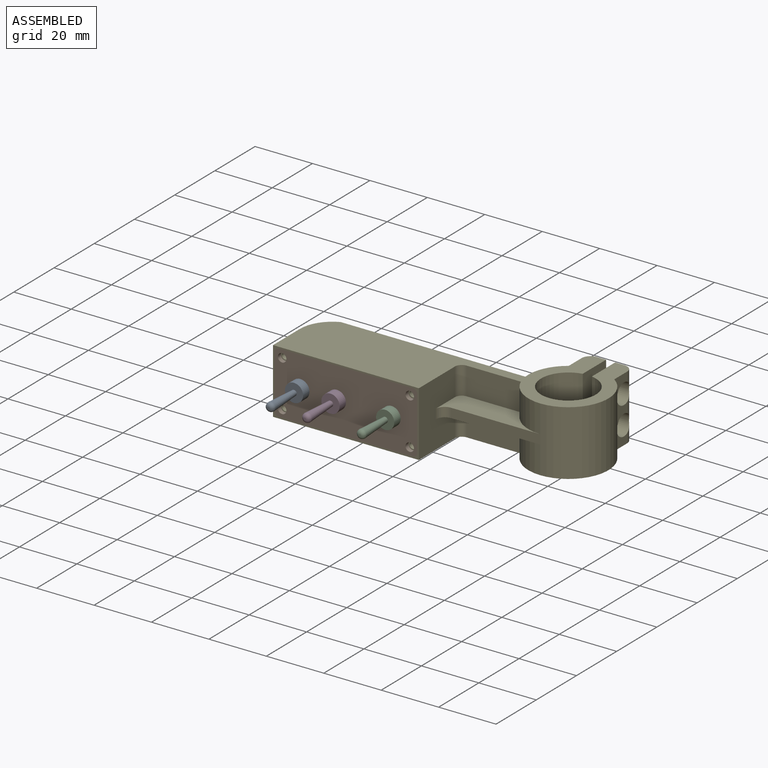
[diagram: assembled view]
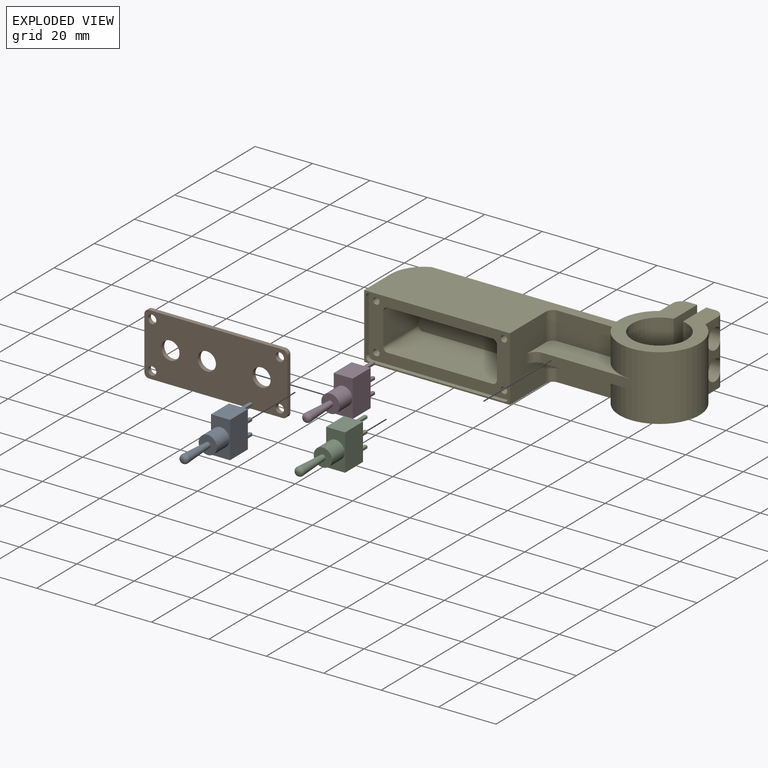
[diagram: exploded view]
GUIDED TOUR — MATED ASSEMBLY (Onshape document a5879a519bc53647b5c58836, AutoMate assembly a5879a519bc53647b5c58836_7702a39120ba5fd16faa81c5_e7838c47f35d2e23a4a96ffd_default)

This assembly has 5 components, labeled P0..P4 below (a component is one placed occurrence of a part; the same part can appear more than once), held together by 4 mates. A mate is a constraint between two components; its type names the relative motion it leaves free:
  FASTENED — locks the two components together rigidly (no relative motion).
Axis/direction vectors are unit vectors and 'through' points are millimeter coordinates, both in the assembly's world frame.

MATES
  1. FASTENED "Fastened 1": P0 <-> P1, direction (0.000, -1.000, 0.000) through (0.62, -12.88, -27.69) mm
  2. FASTENED "Fastened 3": P2 <-> P1, direction (0.000, -1.000, 0.000) through (32.37, -12.88, -27.69) mm
  3. FASTENED "Fastened 2": P3 <-> P1, direction (0.000, -1.000, 0.000) through (13.32, -12.88, -27.69) mm
  4. FASTENED "Fastened 4": P4 <-> P1, direction (0.000, -1.000, 0.000) through (-5.73, -8.18, -35.81) mm

ASSEMBLY ORDER
  1. P3 — the base component [order verified]
  2. P4 [order verified]
  3. P2 [order verified]
  4. P1 [order verified]
  5. P0 [order verified]
Order-tag legend:
  [order verified] — this step's position reverses a verified removal order: the component was checked to insert without passing through the ones already placed.

Of the 5 components, 4 carry the full construction recipe — the FeatureScript program that regenerates the part's solid from scratch; the rest are supplied as boundary geometry only.
Each toured component is shown spotlighted twice — in the assembled view, then in the exploded view, where a leader line traces a displaced component back to its assembled socket (saturated green if recipe-attached, orange if geometry-only; every other component desaturated gray) — followed by its recipe or geometry summary and the mates that hold it.
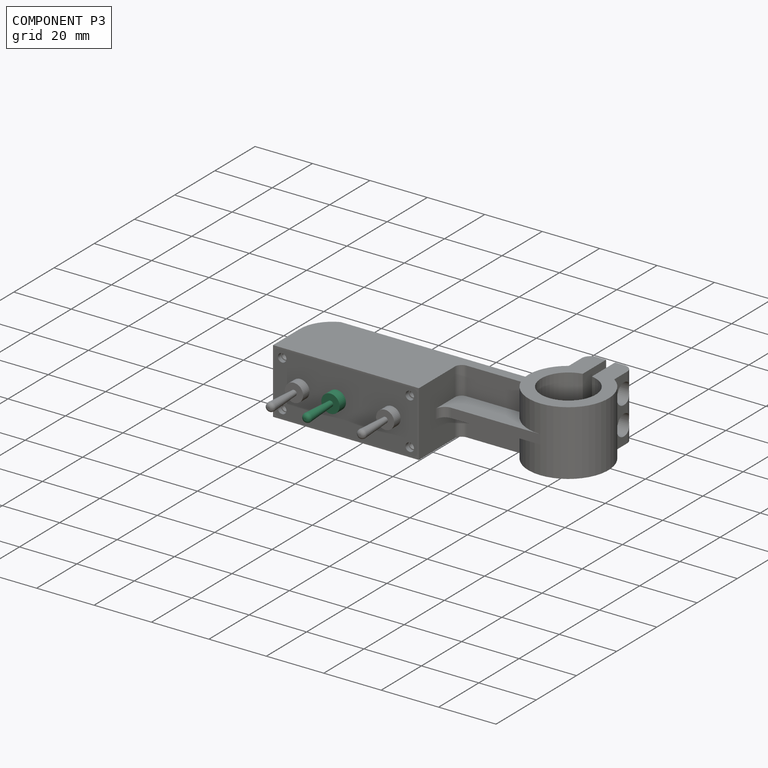
[diagram: component P3 — assembled]
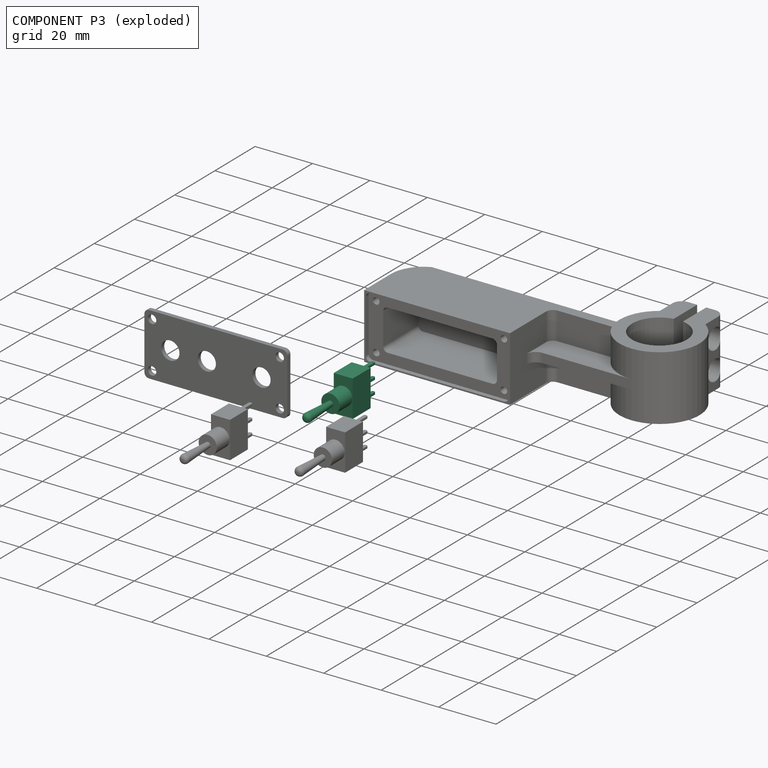
[diagram: component P3 — exploded]
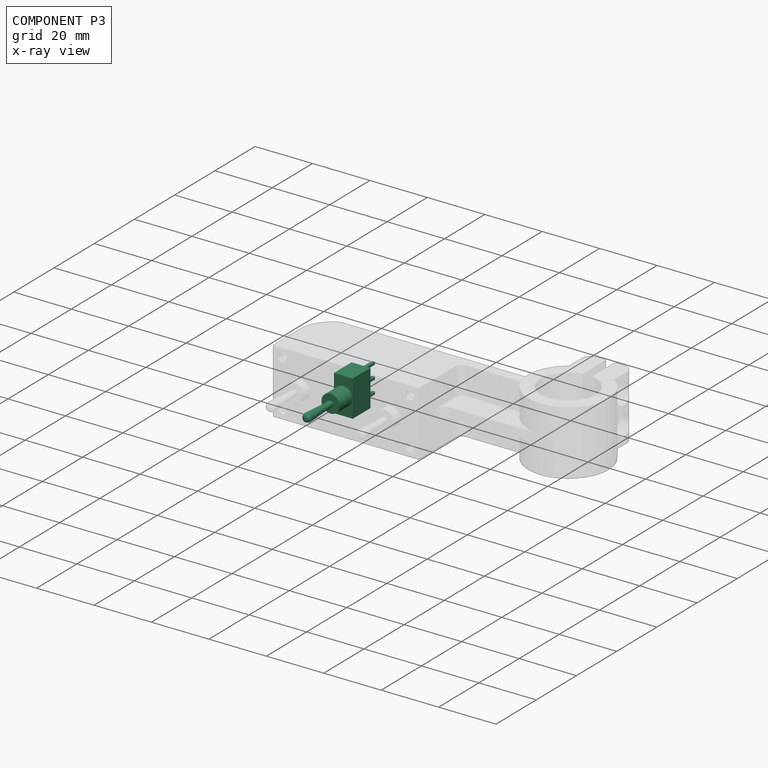
[diagram: component P3 — x-ray view]
COMPONENT P3 — same part as P0 (CADFS 00929241); its construction recipe is shown at P0.
Held by: FASTENED mate "Fastened 2" to P1.
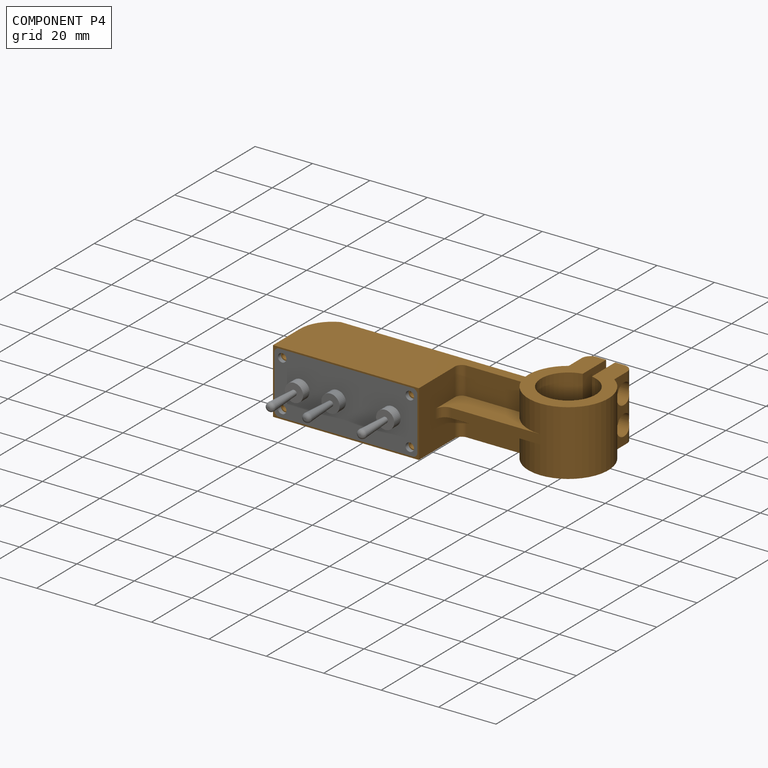
[diagram: component P4 — assembled]
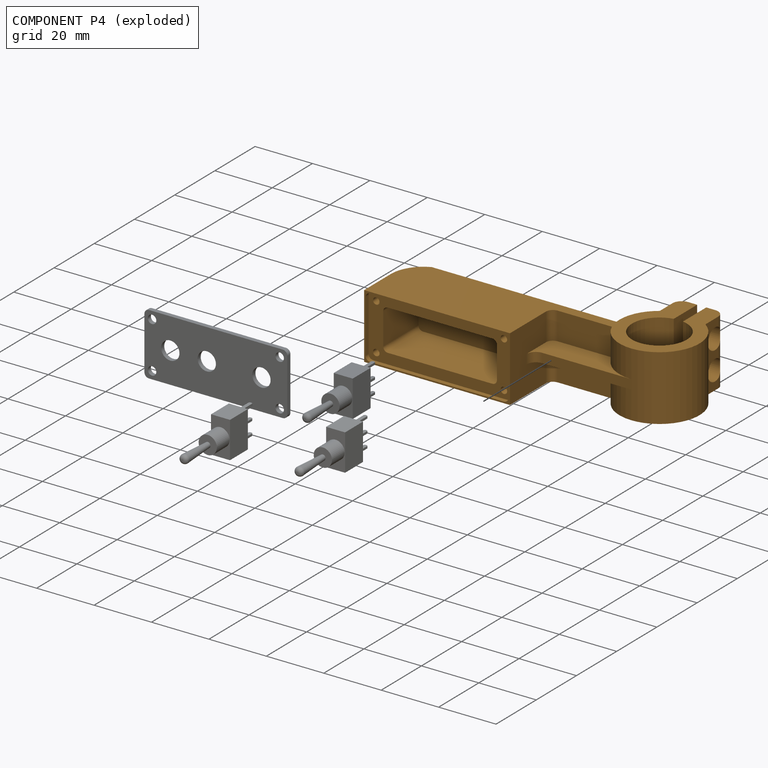
[diagram: component P4 — exploded]
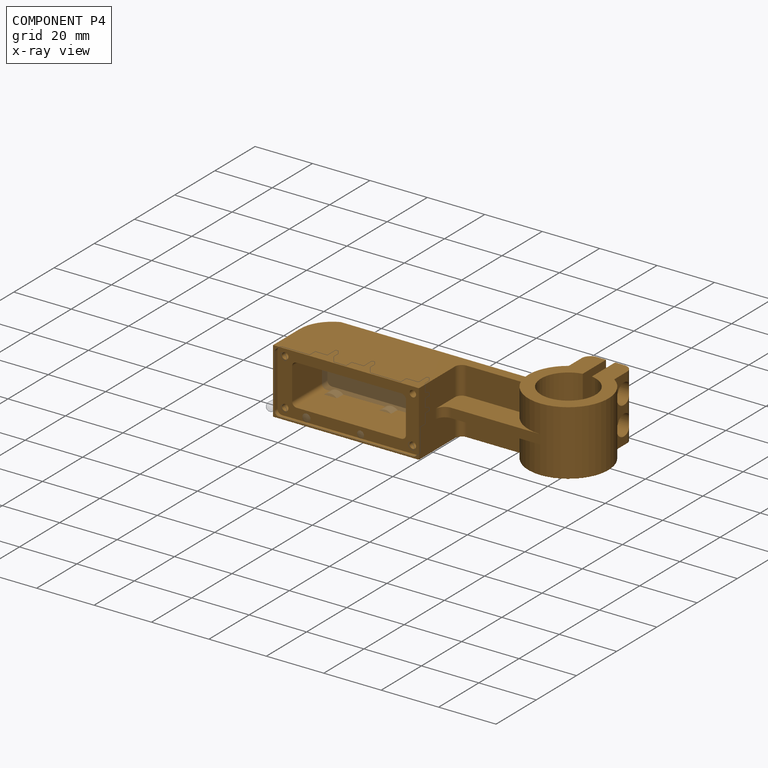
[diagram: component P4 — x-ray view]
COMPONENT P4 — geometry summary (no construction recipe available for this part):
  bounding box: 99.1 x 46.4 x 22.6 mm
  B-rep topology: 1 solid, 65 faces, 358 edges
  volume: 27831 mm^3 (27% of its bounding box)
  symmetry: mirror-symmetric across its z mid-plane
Held by: FASTENED mate "Fastened 4" to P1.
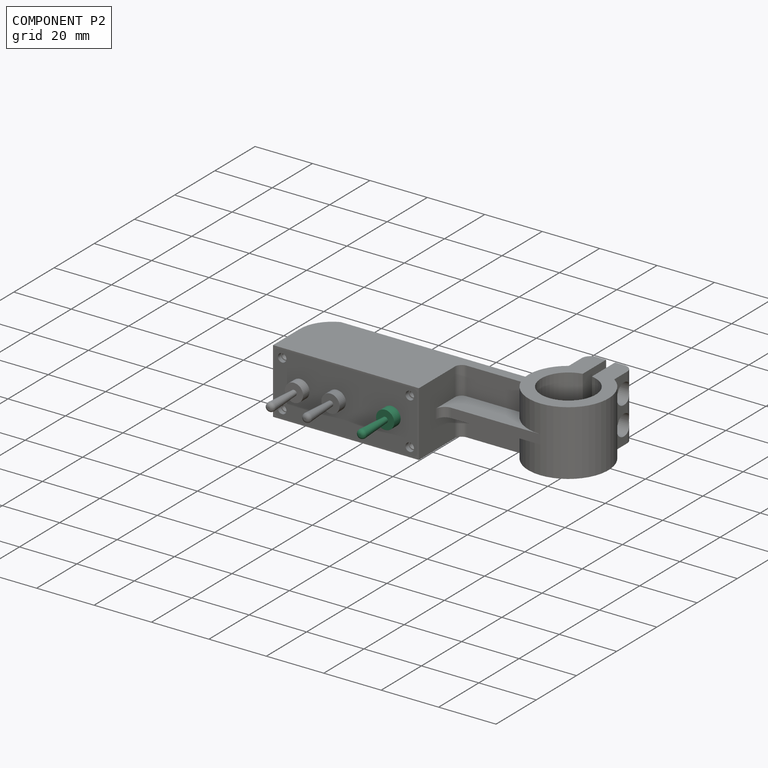
[diagram: component P2 — assembled]
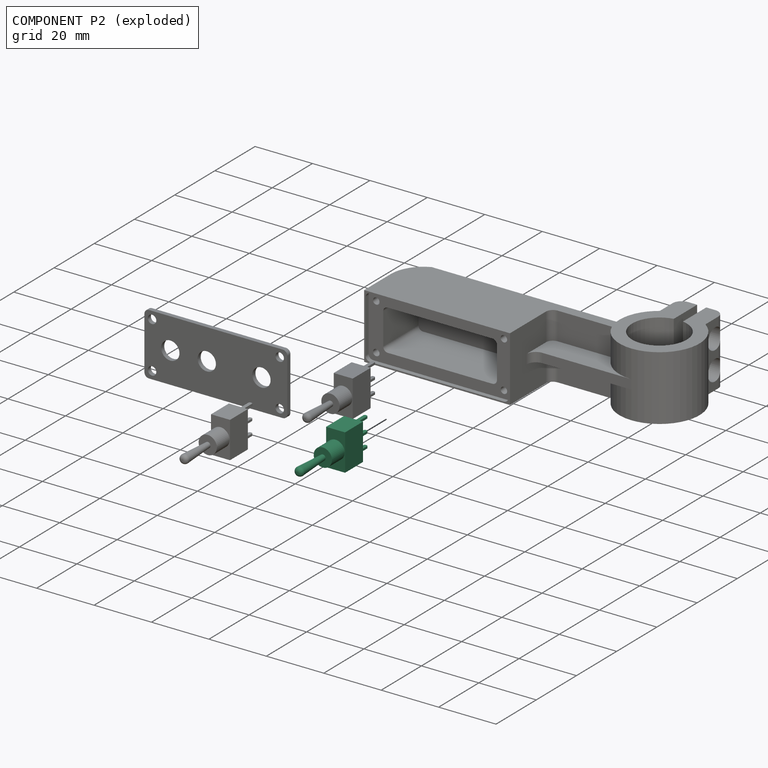
[diagram: component P2 — exploded]
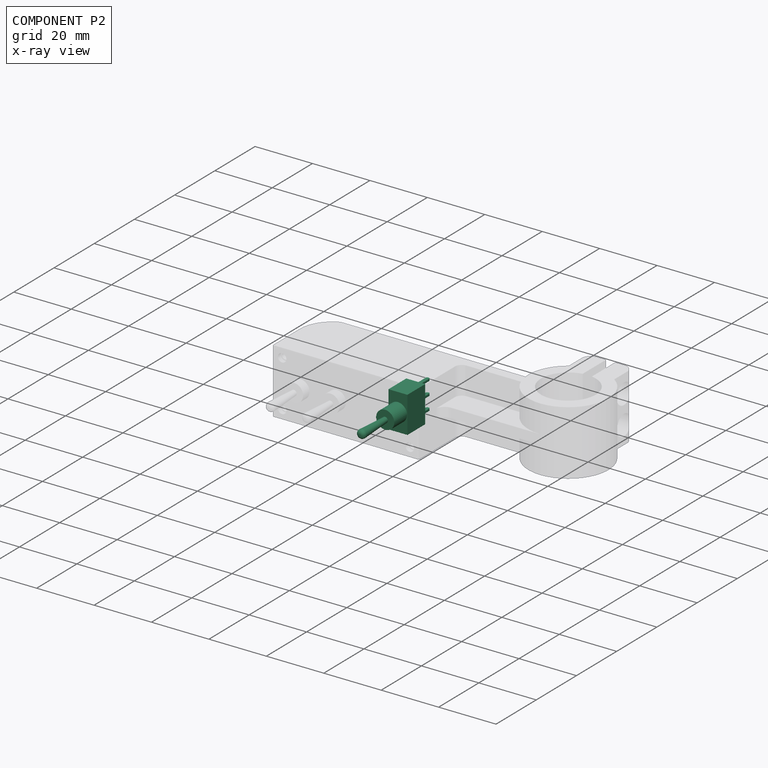
[diagram: component P2 — x-ray view]
COMPONENT P2 — same part as P0 (CADFS 00929241); its construction recipe is shown at P0.
Held by: FASTENED mate "Fastened 3" to P1.
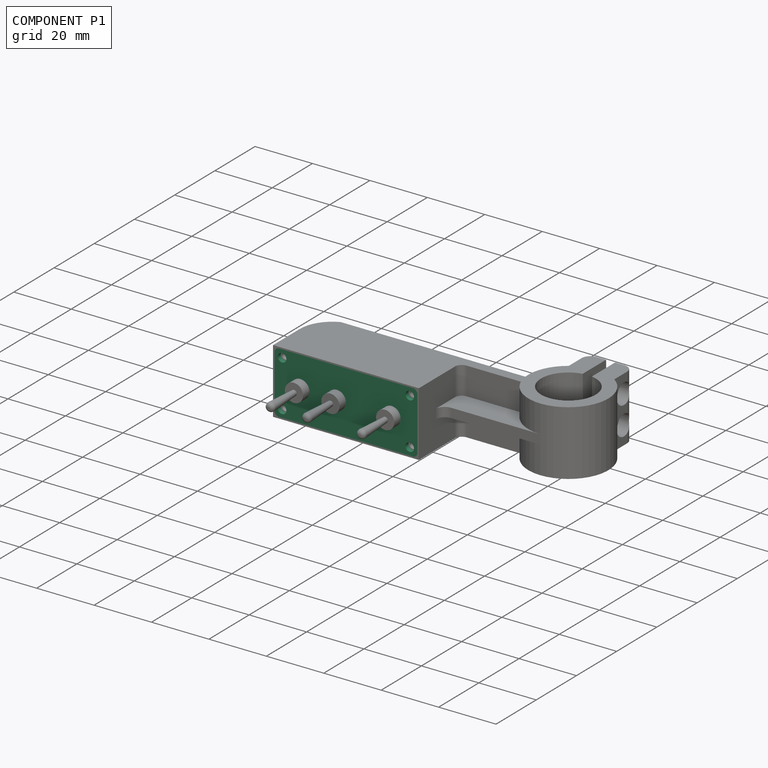
[diagram: component P1 — assembled]
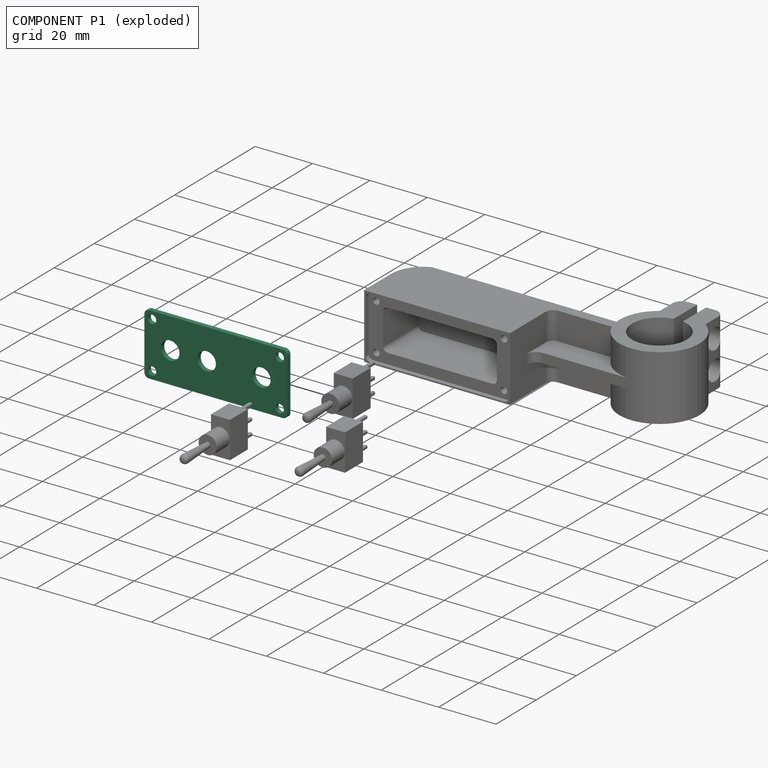
[diagram: component P1 — exploded]
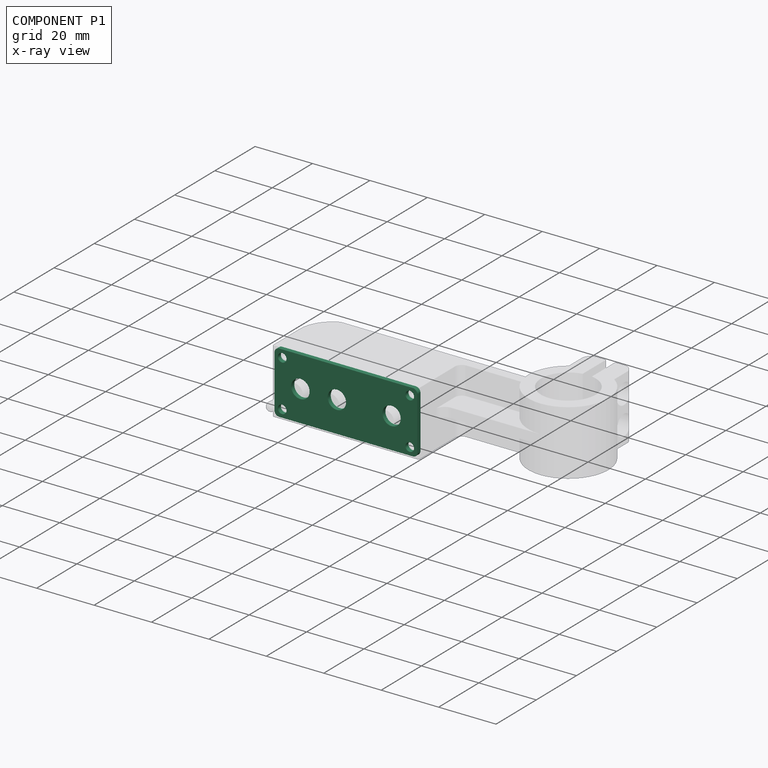
[diagram: component P1 — x-ray view]
COMPONENT P1 — recipe-attached (CADFS 00929242, mesh-verified: the recipe's output STEP matches this component's geometry to below the mesh-comparison resolution (tessellation chordal tolerance ~0.0814 mm)).
Held by: FASTENED mate "Fastened 1" to P0; FASTENED mate "Fastened 3" to P2; FASTENED mate "Fastened 2" to P3; FASTENED mate "Fastened 4" to P4.
Construction recipe (FeatureScript — the CAD program that rebuilds this solid; sketch coordinates are in the units given by the * unit suffixes, e.g. mm):

FeatureScript 2144;
import(path : "onshape/std/geometry.fs", version : "2144.0");
import(path : "onshape/std/common.fs", version : "2144.0");
const mm = millimeter;
const VERTEX = EntityType.VERTEX;
const EDGE = EntityType.EDGE;
const FACE = EntityType.FACE;
const BODY = EntityType.BODY;
function v(x, y){return vector(x, y);}
function OD(order){return orderDisambiguation(order);}
function OSD(set){return originalSetDisambiguation(set);}
function TD(topology){return topologyDisambiguation(topology);}
function TDD(query){return trueDependencyDisambiguation(query);}
function sQuery(a, b, c) {return sketchEntityQuery(a, b, c);}

annotation { "Feature Type Name" : "Feature", "Feature Type Description" : "" }
export const myFeature = defineFeature(function(context is Context, id is Id, definition is map)
    precondition{}
    {
        {
            var Q0;
            Q0=qCreatedBy(makeId("Front.planeOp"),FACE);
            var sketch = newSketch(context, id + "F0", { "sketchPlane" : qUnion([Q0])});
            skLineSegment(sketch, "E0.bottom", {"start": v(-23.3, 10.78) * mm, "end": v(23.3, 10.78) * mm});
            skLineSegment(sketch, "E0.top", {"start": v(-23.3, -10.78) * mm, "end": v(23.3, -10.78) * mm});
            skLineSegment(sketch, "E0.left", {"start": v(-24.9, 9.2) * mm, "end": v(-24.9, -9.2) * mm});
            skLineSegment(sketch, "E0.right", {"start": v(24.9, 9.2) * mm, "end": v(24.9, -9.2) * mm});
            skPoint(sketch, "E0.middle", {"position": v(0, 0) * mm});
            skPoint(sketch, "E1.visualSharp", {"position": v(24.9, 10.78) * mm});
            skArc(sketch, "E1.filletArc", {"start": v(24.9, 9.2) * mm, "mid": v(24.43, 10.32) * mm, "end": v(23.3, 10.78) * mm});
            skPoint(sketch, "E2.visualSharp", {"position": v(-24.9, 10.78) * mm});
            skArc(sketch, "E2.filletArc", {"start": v(-23.3, 10.78) * mm, "mid": v(-24.43, 10.32) * mm, "end": v(-24.9, 9.2) * mm});
            skPoint(sketch, "E3.visualSharp", {"position": v(-24.9, -10.78) * mm});
            skArc(sketch, "E3.filletArc", {"start": v(-24.9, -9.2) * mm, "mid": v(-24.43, -10.32) * mm, "end": v(-23.3, -10.78) * mm});
            skPoint(sketch, "E4.visualSharp", {"position": v(24.9, -10.78) * mm});
            skArc(sketch, "E4.filletArc", {"start": v(23.3, -10.78) * mm, "mid": v(24.43, -10.32) * mm, "end": v(24.9, -9.2) * mm});
            skCircle(sketch, "E5", {"center": v(-15.88, 0) * mm, "radius": 3.18 * mm});
            skCircle(sketch, "E6", {"center": v(-3.17, 0) * mm, "radius": 3.18 * mm});
            skCircle(sketch, "E7", {"center": v(15.88, 0) * mm, "radius": 3.18 * mm});
            skCircle(sketch, "E8", {"center": v(-22.23, 8.12) * mm, "radius": 1.47 * mm});
            skCircle(sketch, "E9", {"center": v(22.23, 8.12) * mm, "radius": 1.47 * mm});
            skCircle(sketch, "E10", {"center": v(22.23, -8.12) * mm, "radius": 1.47 * mm});
            skCircle(sketch, "E11", {"center": v(-22.22, -8.12) * mm, "radius": 1.47 * mm});
            skSolve(sketch);
        }
        {
            var Q0;
            Q0=makeQuery(id+"F0.imprint","IMPRINT",FACE,{"disambiguationData":[TD([[makeQuery(id+"F0.imprint","IMPRINT",EDGE,{"derivedFrom":sQuery(id+"F0.wireOp",EDGE,"E0.bottom")}),-1.0]])]});
            extrude(context, id + "F1", {"entities" : qUnion([Q0]), "depth" : 1.52 * mm, "offsetDistance" : 25.4 * mm});
        }
    });
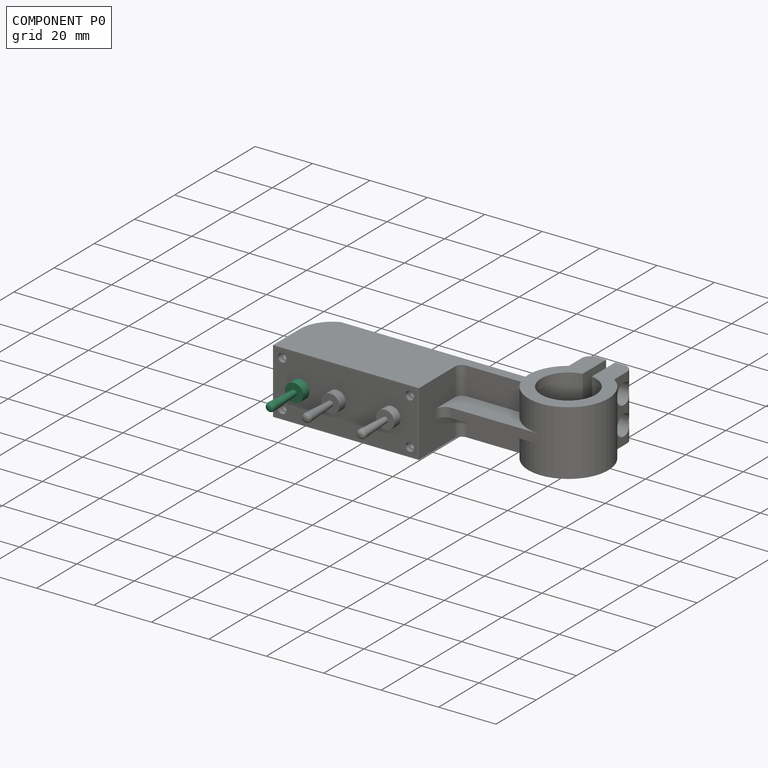
[diagram: component P0 — assembled]
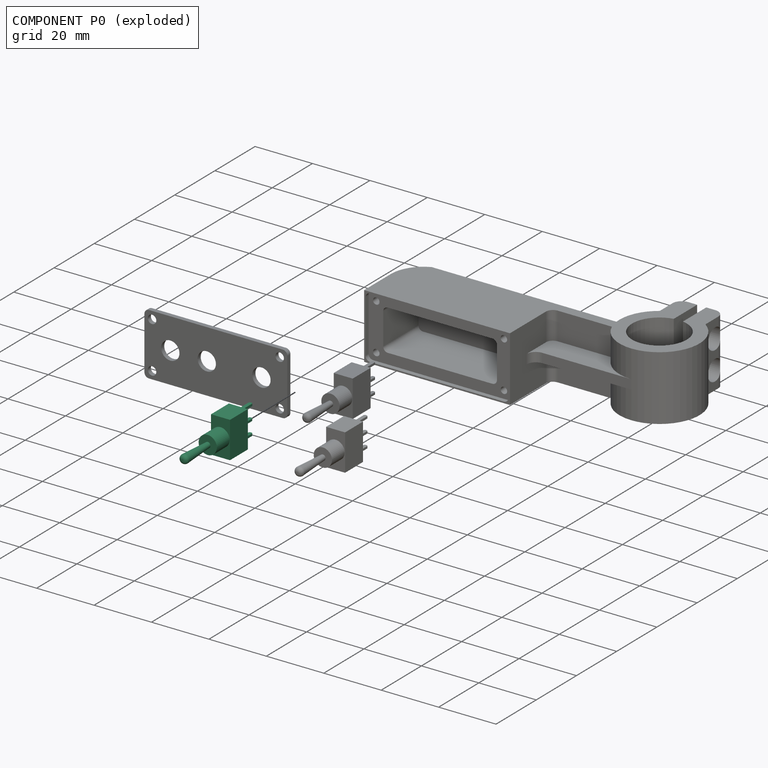
[diagram: component P0 — exploded]
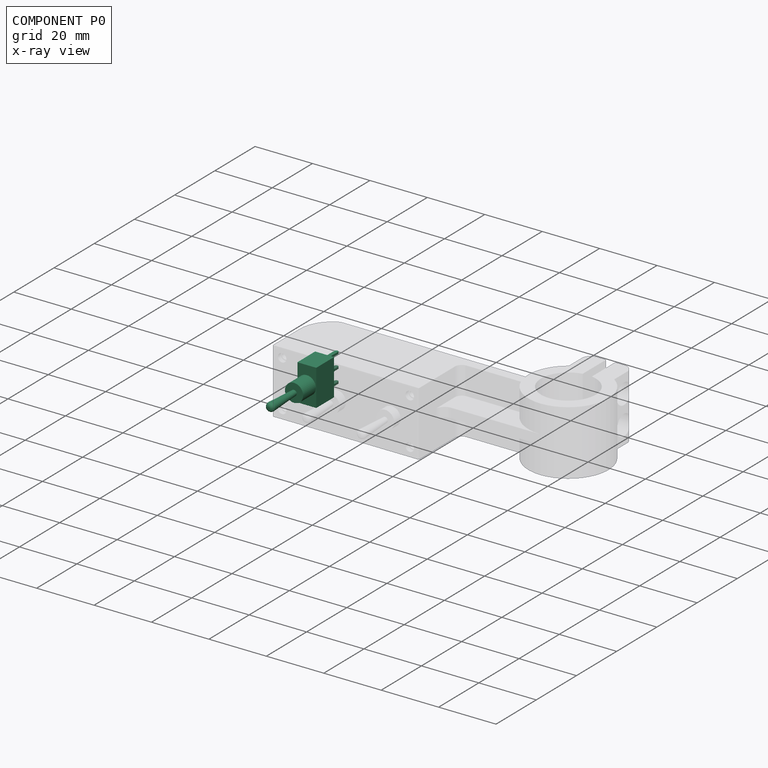
[diagram: component P0 — x-ray view]
COMPONENT P0 — recipe-attached (CADFS 00929241, mesh-verified: the recipe's output STEP matches this component's geometry to below the mesh-comparison resolution (tessellation chordal tolerance ~0.0557 mm)).
Held by: FASTENED mate "Fastened 1" to P1.
Construction recipe (FeatureScript — the CAD program that rebuilds this solid; sketch coordinates are in the units given by the * unit suffixes, e.g. mm):

FeatureScript 2144;
import(path : "onshape/std/geometry.fs", version : "2144.0");
import(path : "onshape/std/common.fs", version : "2144.0");
const mm = millimeter;
const VERTEX = EntityType.VERTEX;
const EDGE = EntityType.EDGE;
const FACE = EntityType.FACE;
const BODY = EntityType.BODY;
function v(x, y){return vector(x, y);}
function OD(order){return orderDisambiguation(order);}
function OSD(set){return originalSetDisambiguation(set);}
function TD(topology){return topologyDisambiguation(topology);}
function TDD(query){return trueDependencyDisambiguation(query);}
function sQuery(a, b, c) {return sketchEntityQuery(a, b, c);}

annotation { "Feature Type Name" : "Feature", "Feature Type Description" : "" }
export const myFeature = defineFeature(function(context is Context, id is Id, definition is map)
    precondition{}
    {
        {
            var Q0;
            Q0=qCreatedBy(makeId("Front.planeOp"),FACE);
            var sketch = newSketch(context, id + "F0", { "sketchPlane" : qUnion([Q0])});
            skLineSegment(sketch, "E0.bottom", {"start": v(-3.3, 6.35) * mm, "end": v(3.3, 6.35) * mm});
            skLineSegment(sketch, "E0.top", {"start": v(-3.3, -6.35) * mm, "end": v(3.3, -6.35) * mm});
            skLineSegment(sketch, "E0.left", {"start": v(-3.3, 6.35) * mm, "end": v(-3.3, -6.35) * mm});
            skLineSegment(sketch, "E0.right", {"start": v(3.3, 6.35) * mm, "end": v(3.3, -6.35) * mm});
            skPoint(sketch, "E0.middle", {"position": v(0, 0) * mm});
            skCircle(sketch, "E1", {"center": v(0, 0) * mm, "radius": 3.18 * mm});
            skSolve(sketch);
        }
        {
            var Q0;
            Q0=makeQuery(id+"F0.imprint","IMPRINT",FACE,{"disambiguationData":[TD([[makeQuery(id+"F0.imprint","IMPRINT",EDGE,{"derivedFrom":sQuery(id+"F0.wireOp",EDGE,"E0.bottom")}),-1.0]])]});
            var Q1;
            Q1=makeQuery(id+"F0.imprint","IMPRINT",FACE,{"disambiguationData":[TD([[makeQuery(id+"F0.imprint","IMPRINT",EDGE,{"derivedFrom":sQuery(id+"F0.wireOp",EDGE,"E1")}),1.0]])]});
            extrude(context, id + "F1", {"entities" : qUnion([Q0, Q1]), "oppositeDirection" : true, "depth" : 8.9 * mm, "offsetDistance" : 25.4 * mm});
        }
        {
            var Q0;
            Q0=makeQuery(id+"F0.imprint","IMPRINT",FACE,{"disambiguationData":[TD([[makeQuery(id+"F0.imprint","IMPRINT",EDGE,{"derivedFrom":sQuery(id+"F0.wireOp",EDGE,"E1")}),1.0]])]});
            extrude(context, id + "F2", {"entities" : qUnion([Q0]), "operationType" : NewBodyOperationType.ADD, "depth" : 6.35 * mm, "offsetDistance" : 25.4 * mm});
        }
        {
            var Q0;
            Q0=makeQuery(id+"F2.opExtrude","CAP_FACE",FACE,{"disambiguationData":[OSD([sQuery(id+"F0.wireOp",EDGE,"E1")])],"isStart":false});
            var sketch = newSketch(context, id + "F3", { "sketchPlane" : qUnion([Q0])});
            skCircle(sketch, "E2", {"center": v(0, 0) * mm, "radius": 0.95 * mm});
            skSolve(sketch);
        }
        {
            var Q0;
            Q0=makeQuery(id+"F3.imprint","IMPRINT",FACE,{"disambiguationData":[TD([[makeQuery(id+"F3.imprint","IMPRINT",EDGE,{"derivedFrom":sQuery(id+"F3.wireOp",EDGE,"E2")}),1.0]])]});
            extrude(context, id + "F4", {"entities" : qUnion([Q0]), "operationType" : NewBodyOperationType.ADD, "depth" : 12.7 * mm, "offsetDistance" : 25.4 * mm, "hasDraft" : true, "draftAngle" : 3 * degree});
        }
        {
            var Q0;
            Q0=makeQuery(id+"F4.opExtrude","CAP_EDGE",EDGE,{"disambiguationData":[OSD([sQuery(id+"F3.wireOp",EDGE,"E2")])],"isStart":false});
            fillet(context, id + "F5", {"entities" : qUnion([Q0]), "tangentPropagation" : true, "radius" : 1.27 * mm, "defaultsChanged" : true, "vertexSettings" : [], "allowEdgeOverflow" : false});
        }
        {
            var Q0;
            Q0=makeQuery(id+"F1.opExtrude","CAP_FACE",FACE,{"disambiguationData":[OSD([sQuery(id+"F0.wireOp",EDGE,"E0.bottom"),sQuery(id+"F0.wireOp",EDGE,"E0.top"),sQuery(id+"F0.wireOp",EDGE,"E0.left"),sQuery(id+"F0.wireOp",EDGE,"E0.right")])],"isStart":false});
            var sketch = newSketch(context, id + "F6", { "sketchPlane" : qUnion([Q0])});
            skLineSegment(sketch, "E3.bottom", {"start": v(-0.64, 5.08) * mm, "end": v(0.64, 5.08) * mm});
            skLineSegment(sketch, "E3.top", {"start": v(-0.63, 4.32) * mm, "end": v(0.64, 4.32) * mm});
            skLineSegment(sketch, "E3.left", {"start": v(-0.63, 5.08) * mm, "end": v(-0.63, 4.32) * mm});
            skLineSegment(sketch, "E3.right", {"start": v(0.64, 5.08) * mm, "end": v(0.64, 4.32) * mm});
            skLineSegment(sketch, "E4.0.1.0", {"start": v(-0.64, 0.38) * mm, "end": v(0.64, 0.38) * mm});
            skLineSegment(sketch, "E4.0.1.1", {"start": v(-0.63, 0.38) * mm, "end": v(-0.63, -0.38) * mm});
            skLineSegment(sketch, "E4.0.1.2", {"start": v(0.64, 0.38) * mm, "end": v(0.64, -0.38) * mm});
            skLineSegment(sketch, "E4.0.1.3", {"start": v(-0.63, -0.38) * mm, "end": v(0.64, -0.38) * mm});
            skLineSegment(sketch, "E4.0.2.0", {"start": v(-0.64, -4.32) * mm, "end": v(0.64, -4.32) * mm});
            skLineSegment(sketch, "E4.0.2.1", {"start": v(-0.63, -4.32) * mm, "end": v(-0.63, -5.08) * mm});
            skLineSegment(sketch, "E4.0.2.2", {"start": v(0.64, -4.32) * mm, "end": v(0.64, -5.08) * mm});
            skLineSegment(sketch, "E4.0.2.3", {"start": v(-0.63, -5.08) * mm, "end": v(0.64, -5.08) * mm});
            skLineSegment(sketch, "E4.direction1", {"start": v(-0.64, 5.08) * mm, "end": v(1.55, 5.08) * mm, "construction": true});
            skLineSegment(sketch, "E4.direction2", {"start": v(-0.64, 5.08) * mm, "end": v(-0.64, 0.38) * mm, "construction": true});
            skSolve(sketch);
        }
        {
            var Q0;
            Q0 = qSketchRegion(id + "F6", true);
            extrude(context, id + "F7", {"entities" : qUnion([Q0]), "operationType" : NewBodyOperationType.ADD, "depth" : 6.35 * mm, "offsetDistance" : 25.4 * mm});
        }
        {
            var Q0;
            Q0=makeQuery(id+"F7.opExtrude","CAP_EDGE",EDGE,{"disambiguationData":[OSD([sQuery(id+"F6.wireOp",EDGE,"E3.left")])],"isStart":false});
            var Q1;
            Q1=makeQuery(id+"F7.opExtrude","CAP_EDGE",EDGE,{"disambiguationData":[OSD([sQuery(id+"F6.wireOp",EDGE,"E3.right")])],"isStart":false});
            var Q2;
            Q2=makeQuery(id+"F7.opExtrude","CAP_EDGE",EDGE,{"disambiguationData":[OSD([sQuery(id+"F6.wireOp",EDGE,"E4.0.1.1")])],"isStart":false});
            var Q3;
            Q3=makeQuery(id+"F7.opExtrude","CAP_EDGE",EDGE,{"disambiguationData":[OSD([sQuery(id+"F6.wireOp",EDGE,"E4.0.1.2")])],"isStart":false});
            var Q4;
            Q4=makeQuery(id+"F7.opExtrude","CAP_EDGE",EDGE,{"disambiguationData":[OSD([sQuery(id+"F6.wireOp",EDGE,"E4.0.2.1")])],"isStart":false});
            var Q5;
            Q5=makeQuery(id+"F7.opExtrude","CAP_EDGE",EDGE,{"disambiguationData":[OSD([sQuery(id+"F6.wireOp",EDGE,"E4.0.2.2")])],"isStart":false});
            fillet(context, id + "F8", {"entities" : qUnion([Q0, Q1, Q2, Q3, Q4, Q5]), "tangentPropagation" : true, "radius" : 0.5 * mm, "defaultsChanged" : true, "vertexSettings" : [], "allowEdgeOverflow" : false});
        }
    });
PROVENANCE & LICENSES
Assembly (occurrences, transforms, mates, per-part STEP geometry): AutoMate dataset, Zenodo record 7776208, CC0.
Construction recipes: CADFS (HuggingFace VladPyatov/CADFS, CC-BY-4.0, layered over the ABC dataset), FeatureScript reconstruction programs keyed by ABC model id.
Join: ABC meta listings map ABC model id -> Onshape documentId; within a shared document, parts are matched by geometric signature (bounding-box dims + volume at 0.1% relative tolerance, exact B-rep face/solid counts).
Verification: 4 of this assembly's 5 components carry a recipe attachment, and every attachment is mesh-verified: the CADFS STEP and the AutoMate member STEP were compared as meshes in their shared local frame (symmetric sampled-point-to-mesh distance); worst across the 4 attachments: below the mesh-comparison resolution (tessellation chordal tolerance ~0.0814 mm) on a 54 mm part.
Renders: orthographic iso camera (az 35 / el 25); the floor grid conveys scale (grid pitch printed in each image; no ruler). In the exploded view each component is displaced by its stored offset vector: the offsets alone carry the explosion direction (mate normal/axis signs are not orientation cues and do not encode it), and separation distances are assigned per mate-chain, not proportionally to assembly-order depth.
